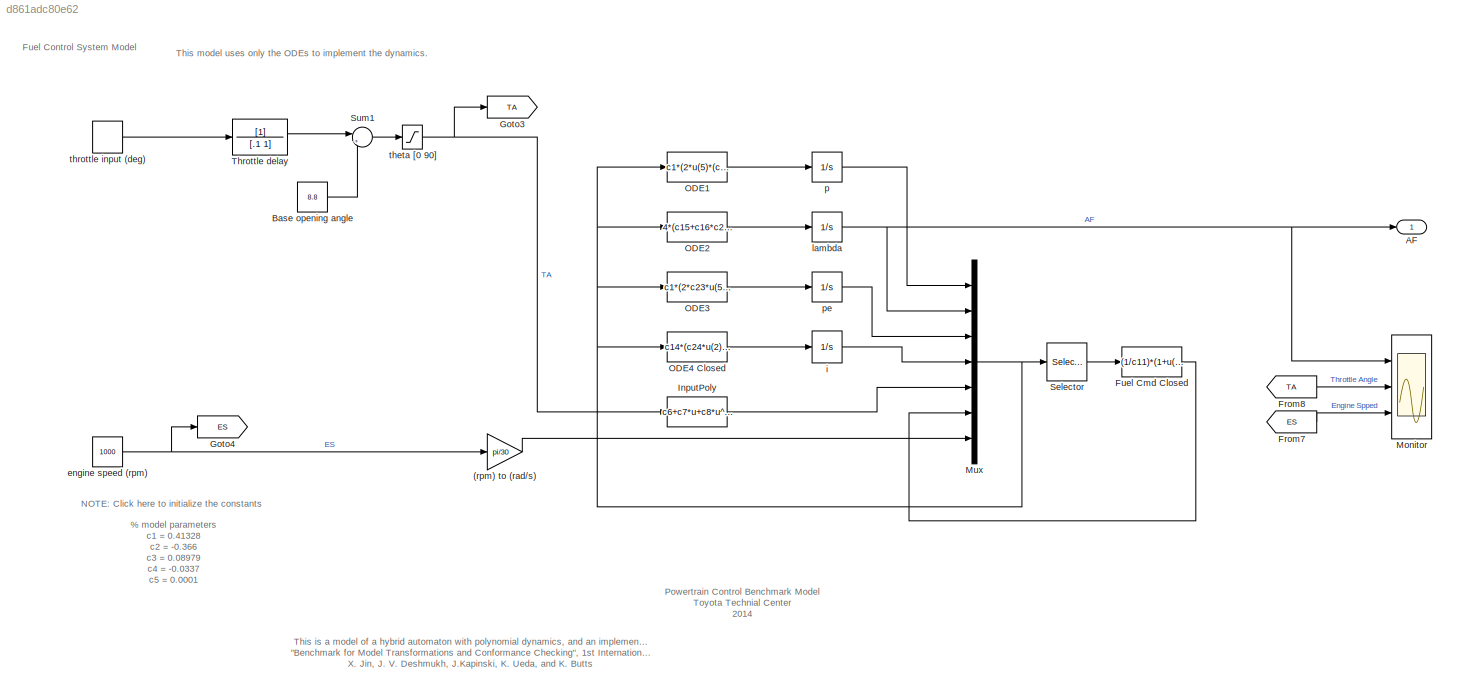
MODEL slx_d861adc80e62
KIND model
CONFIG AbsTol = 1e-6
CONFIG EnableMultiTasking = off
CONFIG FixedStep = .00005
CONFIG MaxStep = auto
CONFIG MinStep = auto
CONFIG RelTol = 1e-6
CONFIG SampleTimeConstraint = Unconstrained
CONFIG Solver = ode15s
CONFIG SolverName = ode15s
CONFIG StartTime = 0.0
CONFIG StopTime = 50
WORKSPACE source: mxarray member
WORKSPACE c1 = 0.41328
WORKSPACE c10 = 1
WORKSPACE c11 = 14.7
WORKSPACE c12 = 0.9
WORKSPACE c13 = 0.04
WORKSPACE c14 = 0.14
WORKSPACE c15 = 13.893
WORKSPACE c16 = -35.2518
WORKSPACE c17 = 20.7364
WORKSPACE c18 = 2.6287
WORKSPACE c19 = -1.592
WORKSPACE c2 = -0.366
WORKSPACE c20 = -2.3421
WORKSPACE c21 = 2.7799
WORKSPACE c22 = -0.3273
WORKSPACE c23 = 1
WORKSPACE c24 = 1
WORKSPACE c25 = 1
WORKSPACE c3 = 0.08979
WORKSPACE c4 = -0.0337
WORKSPACE c5 = 0.0001
WORKSPACE c6 = 2.821
WORKSPACE c7 = -0.05231
WORKSPACE c8 = 0.10299
WORKSPACE c9 = -0.00063
BLOCK [Gain] (rpm) to (rad//s)
  Gain = pi/30
BLOCK [Outport] AF
BLOCK [Constant] Base opening angle
  Value = 8.8
BLOCK [From] From7
  GotoTag = ES
BLOCK [From] From8
  GotoTag = TA
BLOCK [Fcn] Fuel Cmd Closed
  Expr = (1/c11)*(1+u(4)+c13*(c24*u(2)-c11))*(c2+c3*u(6)*u(3)+c4*u(6)*u(3)^2+c5*u(3)*u(6)^2)
BLOCK [Goto] Goto3
  GotoTag = TA
BLOCK [Goto] Goto4
  GotoTag = ES
BLOCK [Fcn] InputPoly
  Expr = c6+c7*u+c8*u^2+c9*u^3
BLOCK [Scope] Monitor
  Floating = off
  NumInputPorts = 3
  Ports = [3]
  ScopeSpecificationString = Simulink.scopes.TimeScopeBlockCfg('CurrentConfiguration', extmgr.ConfigurationSet(extmgr.Configuration('Core','General UI',true),extmgr.Configuration('Core','Source UI',true),extmgr.Configuration('Sources','WiredSimulink',true,'DataLoggingSaveFormat','StructureWithTime','DataLoggingDecimation','1','DataLoggingDecimateData',true),extmgr.Configuration('Visuals','Time Domain',true,'SerializedDisplays...<+3067ch>
BLOCK [Mux] Mux
  DisplayOption = bar
  Inputs = 7
  Ports = [7, 1]
BLOCK [Fcn] ODE1
  Expr = c1*(2*u(5)*(c20*u(1)^2+c21*u(1)+c22) - c12*(c2+c3*u(7)*u(1)+c4*u(7)*u(1)^2+c5*u(1)*u(7)^2))
BLOCK [Fcn] ODE2
  Expr = 4*(c15+c16*c25*u(6)+c17*c25^2*u(6)^2+c18*(c12*(c2+c3*u(7)*u(1)+c4*u(7)*u(1)^2+c5*u(1)*u(7)^2)) +c19*(c12*(c2+c3*u(7)*u(1)+c4*u(7)*u(1)^2+c5*u(1)*u(7)^2)) *c25*u(6)-u(2))
BLOCK [Fcn] ODE3
  Expr = c1*(2*c23*u(5)*(c20*u(1)^2+c21*u(1)+c22)-(c2+c3*u(7)*u(3)+c4*u(7)*u(3)^2+c5*u(3)*u(7)^2))
BLOCK [Fcn] ODE4 Closed
  Expr = c14*(c24*u(2)-c11)
BLOCK [Selector] Selector
  IndexOptions = Index vector (dialog)
  Indices = [1 2 3 4 5 7]
  InputPortWidth = 7
  OutputSizes = 1
  Ports = [1, 1]
BLOCK [Sum] Sum1
  Inputs = |++
  Ports = [2, 1]
BLOCK [TransferFcn] Throttle delay
  Denominator = [.1 1]
BLOCK [Constant] engine speed (rpm)
  AttributesFormatString = %<Description>
  Description = [1000, 3000]
  Value = 1000
BLOCK [Integrator] i
  InitialCondition = 0.017
  Ports = [1, 1]
BLOCK [Integrator] lambda
  InitialCondition = 14.7
  Ports = [1, 1]
BLOCK [Integrator] p
  InitialCondition = 0.6353
  Ports = [1, 1]
BLOCK [Integrator] pe
  InitialCondition = 0.5573
  Ports = [1, 1]
BLOCK [Saturate] theta [0 90]
  LowerLimit = 0
  NameLocation = top
  UpperLimit = 90
BLOCK [DiscretePulseGenerator] throttle input (deg)
  Amplitude = 75.2996
  AttributesFormatString = %<Description>
  Description = [0, 81.2]
  Period = 15.7
  PhaseDelay = 3
  Ports = [0, 1]
  PulseType = Time based
  PulseWidth = 50
ANNOTATION (root): % model parameters c1 = 0.41328 c2 = -0.366 c3 = 0.08979 c4 = -0.0337 c5 = 0.0001 c6 = 2.821 c7 = -0.05231 c8 = 0.10299 c9 = -0.00063 c10 = 1.0 c11 = 14.7 c12 = 0.9 c13 = 0.04 c14 = 0.14 % coefficients of polynomial approximations c15 = 13.893 c16 = -35.2518 c17 = 20.7364 c18 = 2.6287 c19 = -1.592 c20 = -2.3421 c21 = 2.7799 c22 = -0.3273 % sensors and actuatorerror factor c23 = 1.0 c24 = 1.0 c25 =...<+4ch>
ANNOTATION (root): Fuel Control System Model
ANNOTATION (root): NOTE: Click here to initialize the constants
ANNOTATION (root): Powertrain Control Benchmark Model Toyota Technial Center 2014
ANNOTATION (root): This is a model of a hybrid automaton with polynomial dynamics, and an implementation of the 2nd model that appears in "Benchmark for Model Transformations and Conformance Checking", 1st International Workshop on Applied Verification for Continuous and Hybrid Systems 2014, X. Jin, J. V. Deshmukh, J.Kapinski, K. Ueda, and K. Butts
ANNOTATION (root): This model uses only the ODEs to implement the dynamics.
LINE (rpm) to (rad//s):1 -> Mux:7
LINE Base opening angle:1 -> Sum1:2
LINE From7:1 -> Monitor:3
LINE From8:1 -> Monitor:2
LINE Fuel Cmd Closed:1 -> Mux:6
LINE InputPoly:1 -> Mux:5
NET Mux:1 -> ODE1:1, ODE2:1, ODE3:1, ODE4 Closed:1, Selector:1
LINE ODE1:1 -> p:1
LINE ODE2:1 -> lambda:1
LINE ODE3:1 -> pe:1
LINE ODE4 Closed:1 -> i:1
LINE Selector:1 -> Fuel Cmd Closed:1
LINE Sum1:1 -> theta [0 90]:1
LINE Throttle delay:1 -> Sum1:1
NET engine speed (rpm):1 -> (rpm) to (rad//s):1, Goto4:1
LINE i:1 -> Mux:4
NET lambda:1 -> AF:1, Monitor:1, Mux:2
LINE p:1 -> Mux:1
LINE pe:1 -> Mux:3
NET theta [0 90]:1 -> Goto3:1, InputPoly:1
LINE throttle input (deg):1 -> Throttle delay:1
note: NET lines group one-source signal fan-out (src -> all destinations, sorted); 1:1 wires keep LINE
